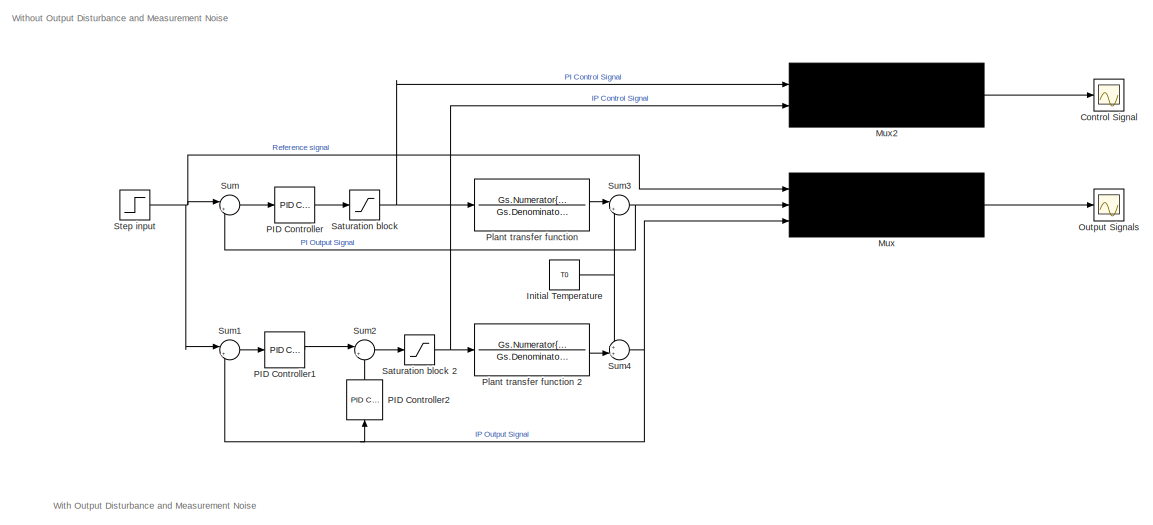
[diagram: root canvas - part 1/2, full width, top band]
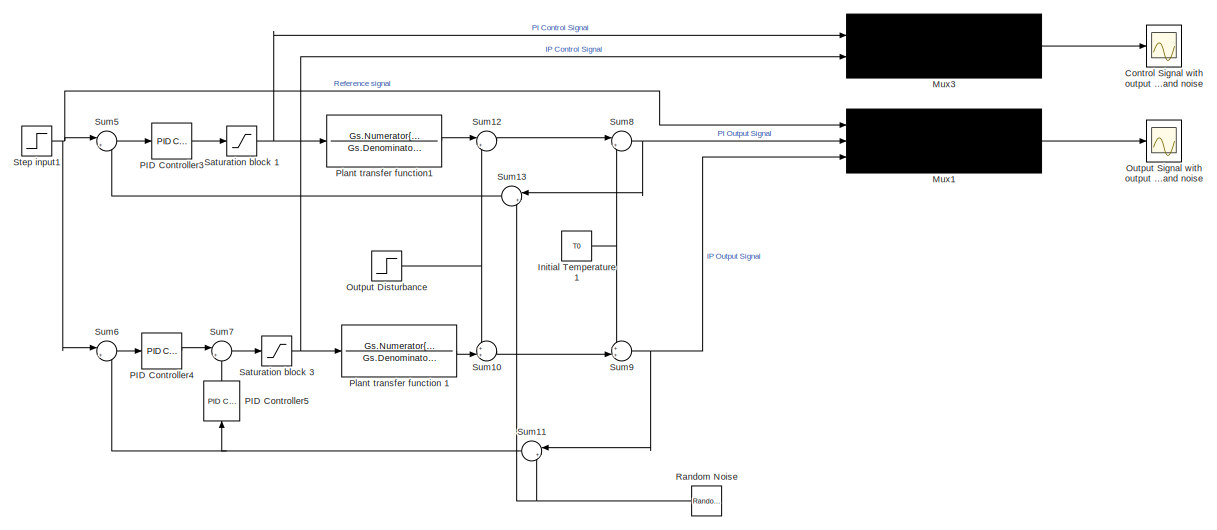
[diagram: root canvas - part 2/2, full width, bottom band]
MODEL slx_2965881cb6a8
KIND model
CONFIG AbsTol = auto
CONFIG EnableMultiTasking = off
CONFIG FixedStep = auto
CONFIG MaxStep = auto
CONFIG MinStep = auto
CONFIG RelTol = 1e-3
CONFIG SampleTimeConstraint = Unconstrained
CONFIG Solver = VariableStepAuto
CONFIG SolverName = VariableStepAuto
CONFIG StartTime = 0.0
CONFIG StopTime = simulation_time
BLOCK [Scope] Control Signal 
  Floating = off
  NumInputPorts = 1
  Ports = [1]
  ScopeSpecificationString = Simulink.scopes.TimeScopeBlockCfg('CurrentConfiguration', extmgr.ConfigurationSet(extmgr.Configuration('Core','General UI',true),extmgr.Configuration('Core','Source UI',true),extmgr.Configuration('Sources','WiredSimulink',true,'DataLoggingVariableName','ScopeData1'),extmgr.Configuration('Visuals','Time Domain',true,'SerializedDisplays',{struct('MinYLimReal','-1.34746','MaxYLimReal','1.18536','YLab...<+1450ch>
BLOCK [Scope] Control Signal with output disturbance and noise 
  Floating = off
  NumInputPorts = 1
  Ports = [1]
  ScopeSpecificationString = Simulink.scopes.TimeScopeBlockCfg('CurrentConfiguration', extmgr.ConfigurationSet(extmgr.Configuration('Core','General UI',true),extmgr.Configuration('Core','Source UI',true),extmgr.Configuration('Sources','WiredSimulink',true,'DataLoggingVariableName','ScopeData2'),extmgr.Configuration('Visuals','Time Domain',true,'SerializedDisplays',{struct('MinYLimReal','-0.12392','MaxYLimReal','1.11524','YLab...<+1450ch>
BLOCK [Constant] Initial Temperature
  Value = T0
BLOCK [Constant] Initial Temperature1
  Value = T0
BLOCK [Mux] Mux
  DisplayOption = signals
  Inputs = 3
  Ports = [3, 1]
BLOCK [Mux] Mux1
  DisplayOption = signals
  Inputs = 3
  Ports = [3, 1]
BLOCK [Mux] Mux2
  DisplayOption = signals
  Inputs = 2
  Ports = [2, 1]
BLOCK [Mux] Mux3
  DisplayOption = signals
  Inputs = 2
  Ports = [2, 1]
BLOCK [Step] Output Disturbance
  After = -5
  SampleTime = 0
  Time = simulation_time/2
BLOCK [Scope] Output Signal with output disturbance and noise 
  Floating = off
  NumInputPorts = 1
  Ports = [1]
  ScopeSpecificationString = Simulink.scopes.TimeScopeBlockCfg('CurrentConfiguration', extmgr.ConfigurationSet(extmgr.Configuration('Core','General UI',true),extmgr.Configuration('Core','Source UI',true),extmgr.Configuration('Sources','WiredSimulink',true,'DataLoggingVariableName','ScopeData1'),extmgr.Configuration('Visuals','Time Domain',true,'SerializedDisplays',{struct('MinYLimReal','23.76757','MaxYLimReal','56.09191','YLa...<+1471ch>
BLOCK [Scope] Output Signals
  Floating = off
  NumInputPorts = 1
  Ports = [1]
  ScopeSpecificationString = Simulink.scopes.TimeScopeBlockCfg('CurrentConfiguration', extmgr.ConfigurationSet(extmgr.Configuration('Core','General UI',true),extmgr.Configuration('Core','Source UI',true),extmgr.Configuration('Sources','WiredSimulink',true),extmgr.Configuration('Visuals','Time Domain',true,'SerializedDisplays',{struct('MinYLimReal','14.73508','MaxYLimReal','57.0697','YLabelReal','','MinYLimMag','14.73508','Max...<+1430ch>
BLOCK [Reference] PID Controller  REF=simulink/Continuous/PID Controller
  Ports = [1, 1]
  SourceBlock = simulink/Continuous/PID Controller
  SourceProductBaseCode = SL
  SourceProductName = Simulink
  SourceType = PID 1dof
BLOCK [Reference] PID Controller1  REF=simulink/Continuous/PID Controller
  Ports = [1, 1]
  SourceBlock = simulink/Continuous/PID Controller
  SourceProductBaseCode = SL
  SourceProductName = Simulink
  SourceType = PID 1dof
BLOCK [Reference] PID Controller2  REF=simulink/Continuous/PID Controller
  Ports = [1, 1]
  SourceBlock = simulink/Continuous/PID Controller
  SourceProductBaseCode = SL
  SourceProductName = Simulink
  SourceType = PID 1dof
BLOCK [Reference] PID Controller3  REF=simulink/Continuous/PID Controller
  Ports = [1, 1]
  SourceBlock = simulink/Continuous/PID Controller
  SourceProductBaseCode = SL
  SourceProductName = Simulink
  SourceType = PID 1dof
BLOCK [Reference] PID Controller4  REF=simulink/Continuous/PID Controller
  Ports = [1, 1]
  SourceBlock = simulink/Continuous/PID Controller
  SourceProductBaseCode = SL
  SourceProductName = Simulink
  SourceType = PID 1dof
BLOCK [Reference] PID Controller5  REF=simulink/Continuous/PID Controller
  Ports = [1, 1]
  SourceBlock = simulink/Continuous/PID Controller
  SourceProductBaseCode = SL
  SourceProductName = Simulink
  SourceType = PID 1dof
BLOCK [TransferFcn] Plant transfer function
  Denominator = Gs.Denominator{1,1}
  Numerator = Gs.Numerator{1,1}
BLOCK [TransferFcn] Plant transfer function 1
  Denominator = Gs.Denominator{1,1}
  Numerator = Gs.Numerator{1,1}
BLOCK [TransferFcn] Plant transfer function 2
  Denominator = Gs.Denominator{1,1}
  Numerator = Gs.Numerator{1,1}
BLOCK [TransferFcn] Plant transfer function1
  Denominator = Gs.Denominator{1,1}
  Numerator = Gs.Numerator{1,1}
BLOCK [RandomNumber] Random Noise
  SampleTime = 0.1
  Variance = 0.5
BLOCK [Saturate] Saturation block 
  InputPortMap = u0
  LowerLimit = lower_limit
  Ports = [1, 1]
  UpperLimit = upper_limit
BLOCK [Saturate] Saturation block 1
  InputPortMap = u0
  LowerLimit = lower_limit
  Ports = [1, 1]
  UpperLimit = upper_limit
BLOCK [Saturate] Saturation block 2
  InputPortMap = u0
  LowerLimit = lower_limit
  Ports = [1, 1]
  UpperLimit = upper_limit
BLOCK [Saturate] Saturation block 3
  InputPortMap = u0
  LowerLimit = lower_limit
  Ports = [1, 1]
  UpperLimit = upper_limit
BLOCK [Step] Step input
  After = step_amplitude
  SampleTime = sample_time
  Time = 0
BLOCK [Step] Step input1
  After = step_amplitude
  SampleTime = sample_time
  Time = 0
BLOCK [Sum] Sum
  IconShape = round
  InputSameDT = off
  Inputs = |+-
  OutDataTypeStr = Inherit: Inherit via internal rule
  Ports = [2, 1]
  SaturateOnIntegerOverflow = off
BLOCK [Sum] Sum1
  IconShape = round
  InputSameDT = off
  Inputs = |+-
  OutDataTypeStr = Inherit: Inherit via internal rule
  Ports = [2, 1]
  SaturateOnIntegerOverflow = off
BLOCK [Sum] Sum10
  IconShape = round
  InputSameDT = off
  Inputs = ++|
  OutDataTypeStr = Inherit: Inherit via internal rule
  Ports = [2, 1]
  SaturateOnIntegerOverflow = off
BLOCK [Sum] Sum11
  IconShape = round
  InputSameDT = off
  Inputs = |++
  OutDataTypeStr = Inherit: Inherit via internal rule
  Ports = [2, 1]
  SaturateOnIntegerOverflow = off
BLOCK [Sum] Sum12
  IconShape = round
  InputSameDT = off
  Inputs = |++
  OutDataTypeStr = Inherit: Inherit via internal rule
  Ports = [2, 1]
  SaturateOnIntegerOverflow = off
BLOCK [Sum] Sum13
  IconShape = round
  InputSameDT = off
  Inputs = |++
  OutDataTypeStr = Inherit: Inherit via internal rule
  Ports = [2, 1]
  SaturateOnIntegerOverflow = off
BLOCK [Sum] Sum2
  IconShape = round
  InputSameDT = off
  Inputs = |+-
  OutDataTypeStr = Inherit: Inherit via internal rule
  Ports = [2, 1]
  SaturateOnIntegerOverflow = off
BLOCK [Sum] Sum3
  IconShape = round
  InputSameDT = off
  Inputs = |++
  OutDataTypeStr = Inherit: Inherit via internal rule
  Ports = [2, 1]
  SaturateOnIntegerOverflow = off
BLOCK [Sum] Sum4
  IconShape = round
  InputSameDT = off
  Inputs = ++|
  OutDataTypeStr = Inherit: Inherit via internal rule
  Ports = [2, 1]
  SaturateOnIntegerOverflow = off
BLOCK [Sum] Sum5
  IconShape = round
  InputSameDT = off
  Inputs = |+-
  OutDataTypeStr = Inherit: Inherit via internal rule
  Ports = [2, 1]
  SaturateOnIntegerOverflow = off
BLOCK [Sum] Sum6
  IconShape = round
  InputSameDT = off
  Inputs = |+-
  OutDataTypeStr = Inherit: Inherit via internal rule
  Ports = [2, 1]
  SaturateOnIntegerOverflow = off
BLOCK [Sum] Sum7
  IconShape = round
  InputSameDT = off
  Inputs = |+-
  OutDataTypeStr = Inherit: Inherit via internal rule
  Ports = [2, 1]
  SaturateOnIntegerOverflow = off
BLOCK [Sum] Sum8
  IconShape = round
  InputSameDT = off
  Inputs = |++
  OutDataTypeStr = Inherit: Inherit via internal rule
  Ports = [2, 1]
  SaturateOnIntegerOverflow = off
BLOCK [Sum] Sum9
  IconShape = round
  InputSameDT = off
  Inputs = ++|
  OutDataTypeStr = Inherit: Inherit via internal rule
  Ports = [2, 1]
  SaturateOnIntegerOverflow = off
ANNOTATION (root): With Output Disturbance and Measurement Noise
ANNOTATION (root): Without Output Disturbance and Measurement Noise
NET Initial Temperature1:1 -> Sum8:2, Sum9:1
NET Initial Temperature:1 -> Sum3:2, Sum4:1
LINE Mux1:1 -> Output Signal with output disturbance and noise :1
LINE Mux2:1 -> Control Signal :1
LINE Mux3:1 -> Control Signal with output disturbance and noise :1
LINE Mux:1 -> Output Signals:1
NET Output Disturbance:1 -> Sum10:1, Sum12:2
LINE PID Controller1:1 -> Sum2:1
LINE PID Controller2:1 -> Sum2:2
LINE PID Controller3:1 -> Saturation block 1:1
LINE PID Controller4:1 -> Sum7:1
LINE PID Controller5:1 -> Sum7:2
LINE PID Controller:1 -> Saturation block :1
LINE Plant transfer function 1:1 -> Sum10:2
LINE Plant transfer function 2:1 -> Sum4:2
LINE Plant transfer function1:1 -> Sum12:1
LINE Plant transfer function:1 -> Sum3:1
NET Random Noise:1 -> Sum11:2, Sum13:2
NET Saturation block 1:1 -> Mux3:1, Plant transfer function1:1
NET Saturation block 2:1 -> Mux2:2, Plant transfer function 2:1
NET Saturation block 3:1 -> Mux3:2, Plant transfer function 1:1
NET Saturation block :1 -> Mux2:1, Plant transfer function:1
NET Step input1:1 -> Mux1:1, Sum5:1, Sum6:1
NET Step input:1 -> Mux:1, Sum1:1, Sum:1
LINE Sum10:1 -> Sum9:2
NET Sum11:1 -> PID Controller5:1, Sum6:2
LINE Sum12:1 -> Sum8:1
LINE Sum13:1 -> Sum5:2
LINE Sum1:1 -> PID Controller1:1
LINE Sum2:1 -> Saturation block 2:1
NET Sum3:1 -> Mux:2, Sum:2
NET Sum4:1 -> Mux:3, PID Controller2:1, Sum1:2
LINE Sum5:1 -> PID Controller3:1
LINE Sum6:1 -> PID Controller4:1
LINE Sum7:1 -> Saturation block 3:1
NET Sum8:1 -> Mux1:2, Sum13:1
NET Sum9:1 -> Mux1:3, Sum11:1
LINE Sum:1 -> PID Controller:1
note: NET lines group one-source signal fan-out (src -> all destinations, sorted); 1:1 wires keep LINE
